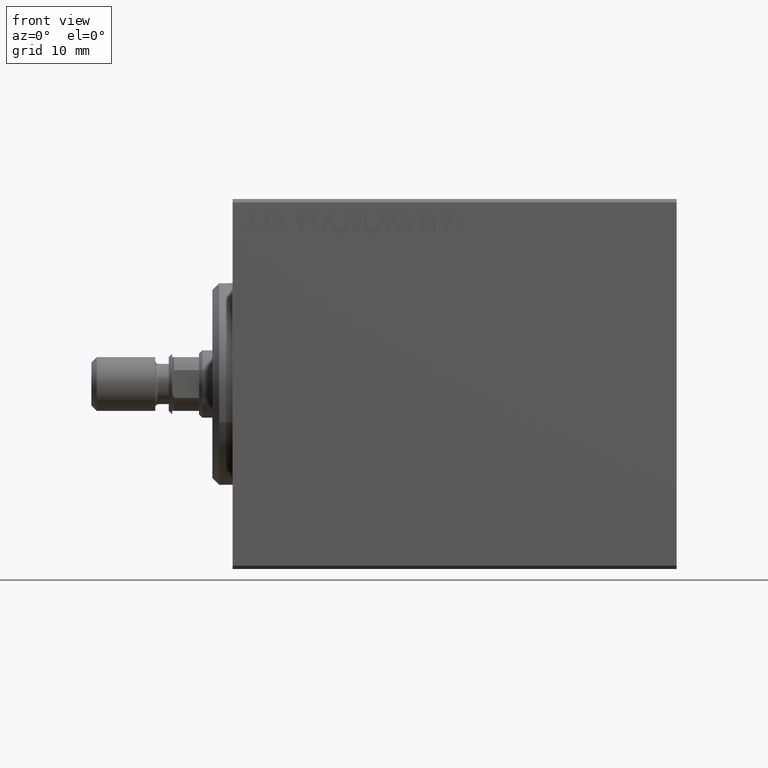
[diagram: clean part render]
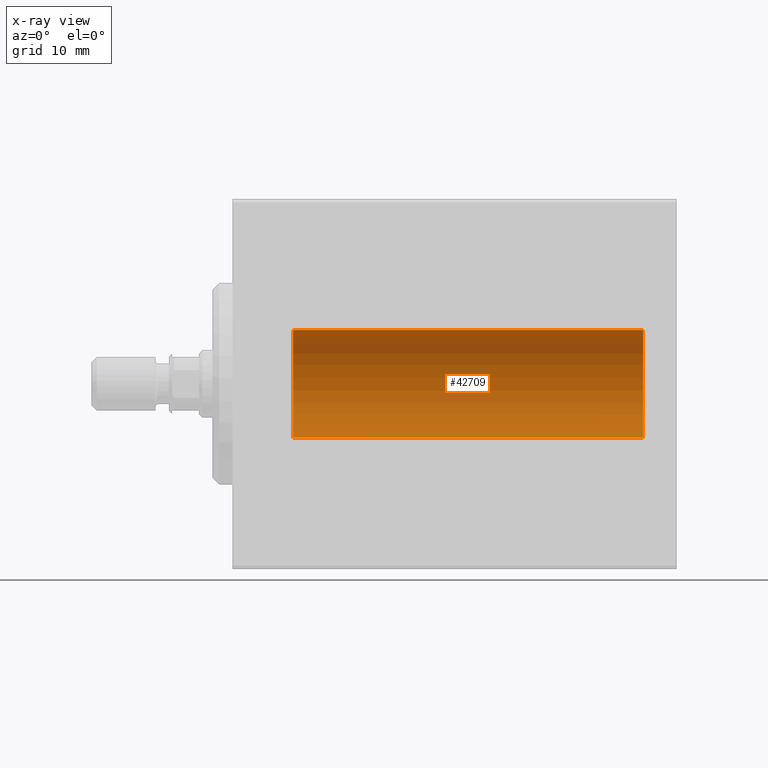
[diagram: x-ray — body ghosted, one internal face saturated and labeled with its STEP entity id]
A machine part, front view, then the same camera in x-ray: the body is ghosted and one INTERNAL B-rep face — a face not visible from any outside direction — is saturated and labeled: STEP entity #42709.
In plain terms, the highlighted cylindrical surface (partial cylindrical patch) has radius 8 mm, axis along (-1, -0, -0).
Its self-contained STEP definition (entity closure, byte-faithful):
#410 = CIRCLE ( 'NONE', #31198, 7.999999999999998224 ) ;
#952 = EDGE_LOOP ( 'NONE', ( #13103, #28288, #22487, #43726 ) ) ;
#1489 = VERTEX_POINT ( 'NONE', #25373 ) ;
#1623 = DIRECTION ( 'NONE',  ( -1.000000000000000000, -0.000000000000000000, -0.000000000000000000 ) ) ;
#2921 = DIRECTION ( 'NONE',  ( -1.000000000000000000, 0.000000000000000000, 0.000000000000000000 ) ) ;
#3307 = DIRECTION ( 'NONE',  ( -1.000000000000000000, -0.000000000000000000, -0.000000000000000000 ) ) ;
#3388 = EDGE_CURVE ( 'NONE', #1489, #32377, #30195, .T. ) ;
#8787 = LINE ( 'NONE', #44155, #21907 ) ;
#9136 = EDGE_CURVE ( 'NONE', #1489, #28749, #35715, .T. ) ;
#13004 = CARTESIAN_POINT ( 'NONE',  ( 61.00000000000000000, 0.000000000000000000, 0.000000000000000000 ) ) ;
#13103 = ORIENTED_EDGE ( 'NONE', *, *, #37129, .F. ) ;
#14286 = CARTESIAN_POINT ( 'NONE',  ( 61.00000000000000000, 0.000000000000000000, 0.000000000000000000 ) ) ;
#16828 = DIRECTION ( 'NONE',  ( 0.000000000000000000, 0.000000000000000000, 1.000000000000000000 ) ) ;
#17905 = CARTESIAN_POINT ( 'NONE',  ( 9.000000000000001776, 9.797174393178821713E-16, -7.999999999999998224 ) ) ;
#19848 = DIRECTION ( 'NONE',  ( -1.000000000000000000, 0.000000000000000000, 0.000000000000000000 ) ) ;
#20119 = CARTESIAN_POINT ( 'NONE',  ( 61.00000000000000000, 0.000000000000000000, 7.999999999999998224 ) ) ;
#21907 = VECTOR ( 'NONE', #1623, 1000.000000000000000 ) ;
#22487 = ORIENTED_EDGE ( 'NONE', *, *, #3388, .T. ) ;
#22810 = DIRECTION ( 'NONE',  ( -1.000000000000000000, -0.000000000000000000, -0.000000000000000000 ) ) ;
#24225 = AXIS2_PLACEMENT_3D ( 'NONE', #14286, #3307, #34020 ) ;
#25373 = CARTESIAN_POINT ( 'NONE',  ( 61.00000000000000000, 0.000000000000000000, 7.999999999999998224 ) ) ;
#26489 = CARTESIAN_POINT ( 'NONE',  ( 9.000000000000001776, 0.000000000000000000, 7.999999999999998224 ) ) ;
#27238 = CARTESIAN_POINT ( 'NONE',  ( 9.000000000000001776, 0.000000000000000000, 0.000000000000000000 ) ) ;
#28288 = ORIENTED_EDGE ( 'NONE', *, *, #9136, .F. ) ;
#28749 = VERTEX_POINT ( 'NONE', #44037 ) ;
#30195 = LINE ( 'NONE', #20119, #35533 ) ;
#31198 = AXIS2_PLACEMENT_3D ( 'NONE', #27238, #19848, #44060 ) ;
#32377 = VERTEX_POINT ( 'NONE', #26489 ) ;
#34020 = DIRECTION ( 'NONE',  ( 0.000000000000000000, 0.000000000000000000, 1.000000000000000000 ) ) ;
#35407 = EDGE_CURVE ( 'NONE', #32377, #39210, #410, .T. ) ;
#35533 = VECTOR ( 'NONE', #22810, 1000.000000000000000 ) ;
#35715 = CIRCLE ( 'NONE', #37148, 7.999999999999998224 ) ;
#37129 = EDGE_CURVE ( 'NONE', #28749, #39210, #8787, .T. ) ;
#37148 = AXIS2_PLACEMENT_3D ( 'NONE', #13004, #2921, #16828 ) ;
#37600 = CYLINDRICAL_SURFACE ( 'NONE', #24225, 7.999999999999998224 ) ;
#39210 = VERTEX_POINT ( 'NONE', #17905 ) ;
#41423 = FACE_OUTER_BOUND ( 'NONE', #952, .T. ) ;
#42709 = ADVANCED_FACE ( 'NONE', ( #41423 ), #37600, .F. ) ;
#43726 = ORIENTED_EDGE ( 'NONE', *, *, #35407, .T. ) ;
#44037 = CARTESIAN_POINT ( 'NONE',  ( 61.00000000000000000, 9.797174393178821713E-16, -7.999999999999998224 ) ) ;
#44060 = DIRECTION ( 'NONE',  ( 0.000000000000000000, 0.000000000000000000, 1.000000000000000000 ) ) ;
#44155 = CARTESIAN_POINT ( 'NONE',  ( 61.00000000000000000, 9.797174393178821713E-16, -7.999999999999998224 ) ) ;